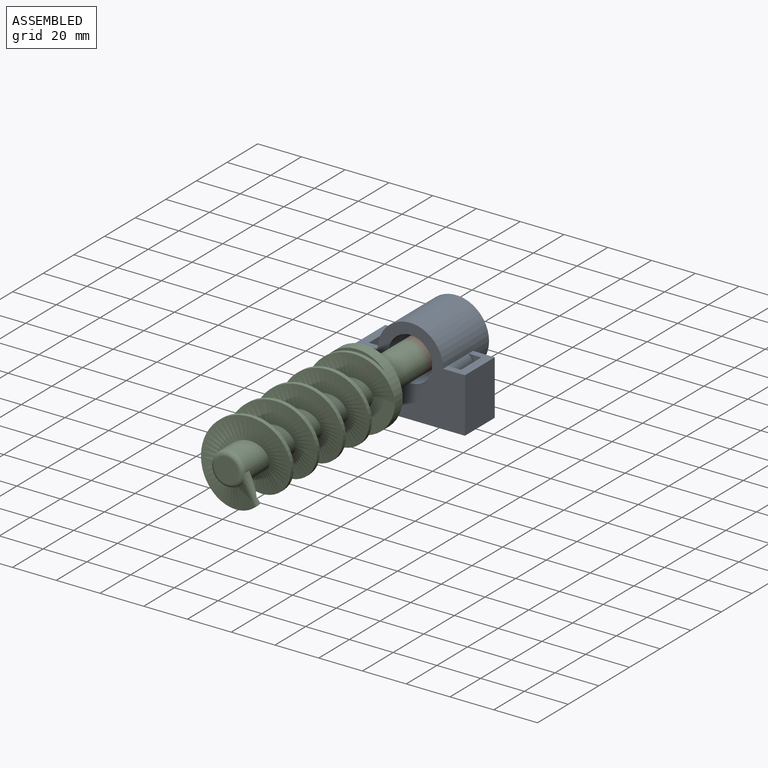
[diagram: assembled view]
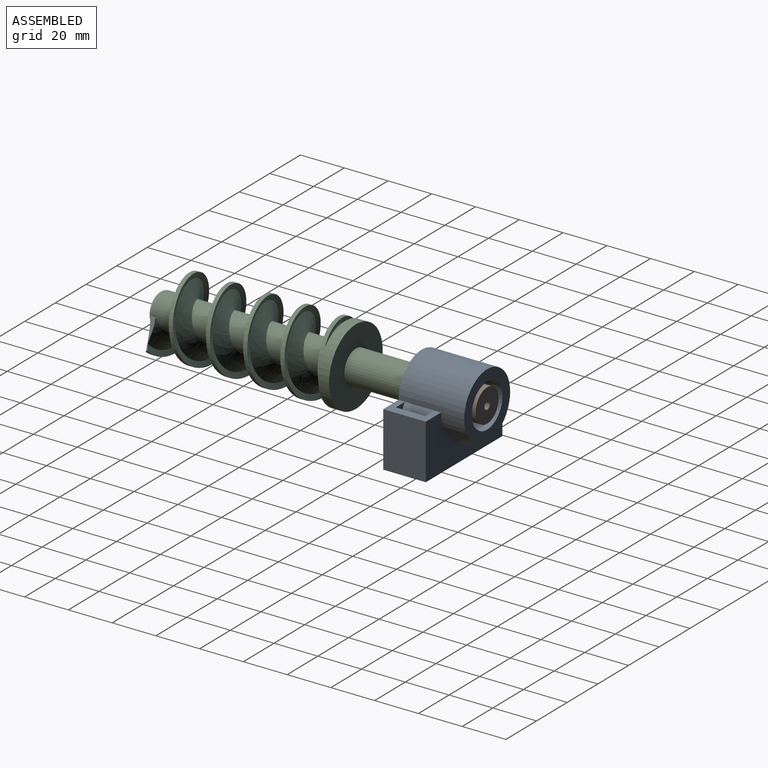
[diagram: assembled view, second angle]
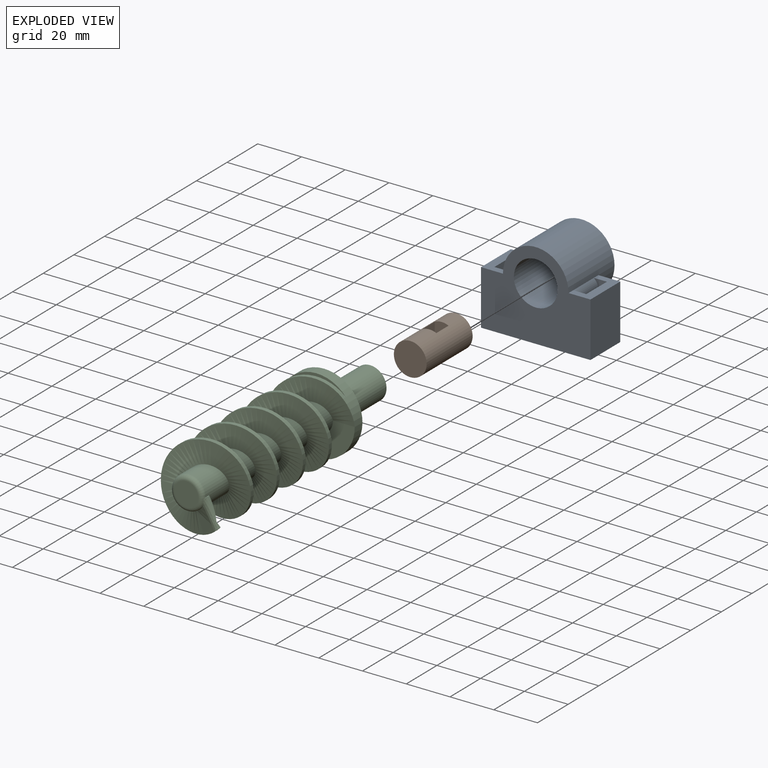
[diagram: exploded view]
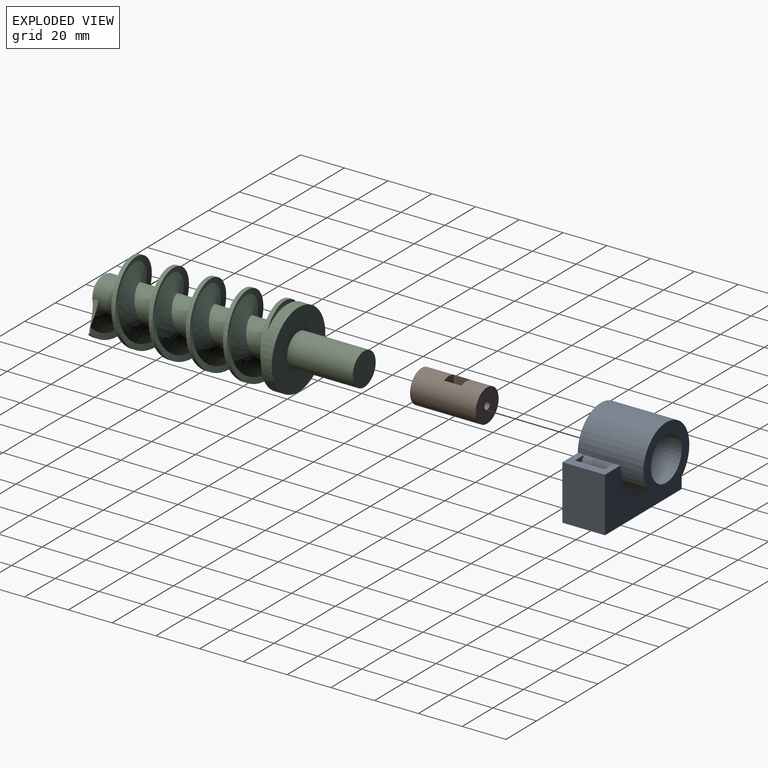
[diagram: exploded view, second angle]
ASSEMBLY  parts=3 mates=2
PART A: 20 faces, bbox 50x40x30 mm
  f0: plane 19.45x10mm, normal (0,1,0), area 113.8mm2, adj f2,f4,f7,f8,f10,f12,f13
  f1: plane 50x19.45mm, normal (0,-1,0), area 865.1mm2, adj f4,f6,f7,f8,f10,f11,f12,f13
  f2: cylinder r=15mm len=30mm, axis (0,0,-1), area 1910.7mm2, adj f0,f3,f4,f5,f7,f18,f19
  f3: plane 30x30mm, normal (0,0,1), area 392.7mm2, adj f2,f9
  f4: plane 50x40mm, normal (0,0,-1), area 1289.3mm2, adj f0,f1,f2,f5,f6,f8,f9
  f5: plane 19.45x10mm, normal (0,1,0), area 113.8mm2, adj f2,f4,f6,f7,f14,f15,f16
  f6: plane 25x19.45mm, normal (1,0,0), area 486.4mm2, adj f1,f4,f5,f7
  f7: plane 50x25mm, normal (0,0,1), area 896.6mm2, adj f0,f1,f2,f5,f6,f8
  f8: plane 25x19.45mm, normal (-1,0,0), area 486.4mm2, adj f0,f1,f4,f7
  f9: cylinder r=10mm len=30mm, axis (0,0,1), area 1885mm2, adj f3,f4
  f10: plane 25x6mm, normal (0,0,-1), area 102.4mm2, adj f0,f1,f11,f13,f18
  f11: plane 21x13.45mm, normal (-1,0,0), area 282.5mm2, adj f1,f10,f12,f18
  f12: plane 25x6mm, normal (0,0,1), area 102.4mm2, adj f0,f1,f11,f13,f18
  f13: plane 25x13.45mm, normal (1,0,0), area 336.4mm2, adj f0,f1,f10,f12
  f14: plane 25x6mm, normal (0,0,-1), area 102.4mm2, adj f1,f5,f15,f17,f19
  f15: plane 25x13.45mm, normal (-1,0,0), area 336.4mm2, adj f1,f5,f14,f16
  f16: plane 25x6mm, normal (0,0,1), area 102.4mm2, adj f1,f5,f15,f17,f19
  f17: plane 21x13.45mm, normal (1,0,0), area 282.5mm2, adj f1,f14,f16,f19
  f18: cylinder r=5mm len=13.45mm, axis (0,0,-1), area 62.4mm2, adj f2,f10,f11,f12
  f19: cylinder r=5mm len=13.45mm, axis (0,0,-1), area 62.4mm2, adj f2,f14,f16,f17
PART B: 10 faces, bbox 15x30x15 mm
  f0: plane 15x15mm, normal (0,-1,0), area 176.7mm2, adj f9
  f1: plane 3.5x3.5mm, normal (0,1,0), area 9.6mm2, adj f2
  f2: cylinder r=1.75mm len=7.5mm, axis (0,1,0), area 82.5mm2, adj f1,f5
  f3: cylinder r=1.75mm len=9.5mm, axis (0,1,0), area 104.4mm2, adj f4,f7
  f4: plane 15x15mm, normal (0,1,0), area 167.1mm2, adj f3,f9
  f5: plane 15x6.3mm, normal (0,1,0), area 82mm2, adj f2,f6,f8,f9
  f6: plane 13.61x8mm, normal (1,0,0), area 108.9mm2, adj f5,f7,f9
  f7: plane 15x6.3mm, normal (0,-1,0), area 82mm2, adj f3,f6,f8,f9
  f8: plane 13.61x8mm, normal (-1,0,0), area 108.9mm2, adj f5,f7,f9
  f9: cylinder r=7.5mm len=30mm, axis (0,-1,0), area 1309.7mm2, adj f0,f4,f5,f6,f7,f8
PART C: 19 faces, bbox 35.2x120.4x37 mm
  f0: cylinder r=7.5mm len=30mm, axis (0,-1,0), area 1413.7mm2, adj f8,f18
  f1: cylinder r=17.5mm len=35mm, axis (0,1,0), area 716.3mm2, adj f2,f7,f8,f12,f14
  f2: cylinder r=17.5mm len=35mm, axis (0,1,0), area 206.2mm2, adj f1,f3,f12,f14
  f3: cylinder r=17.5mm len=35mm, axis (0,1,0), area 206.2mm2, adj f2,f4,f12,f14
  f4: cylinder r=17.5mm len=35mm, axis (0,1,0), area 206.3mm2, adj f3,f5,f12,f14
  f5: cylinder r=17.5mm len=35mm, axis (0,1,0), area 206.3mm2, adj f4,f6,f12,f14
  f6: cylinder r=17.5mm len=1.88mm, axis (0,1,0), area 2.2mm2, adj f5,f12,f17
  f7: plane 35.12x35.12mm, normal (0,-1,0), area 685.6mm2, adj f1,f9,f12,f13,f14
  f8: plane 35x35mm, normal (0,1,0), area 785.4mm2, adj f0,f1
  f9: cylinder r=7.5mm len=83mm, axis (0,1,0), area 2991.3mm2, adj f7,f11,f13,f14,f16
  f10: plane 11x11mm, normal (0,-1,0), area 95mm2, adj f16
  f11: plane 3.15x0.74mm, normal (0,0,-1), area 0.7mm2, adj f9,f13,f15,f16,f17
  f12: bspline ~83.96x36.8mm, area 1282mm2, adj f1,f2,f3,f4,f5,f6,f7,f13
  f13: bspline ~87.78x31.54mm, area 2778.3mm2, adj f7,f9,f11,f12,f15,f17
  f14: bspline ~85x36.8mm, area 3934.1mm2, adj f1,f2,f3,f4,f5,f7,f9,f16
  f15: plane 5.48x2.45mm, normal (-0.91,0,-0.41), area 4.2mm2, adj f11,f13,f17
  f16: torus R=5.5mm, axis (0,-1,0), area 129.3mm2, adj f9,f10,f11,f14,f17
  f17: bspline ~16.29x8.81mm, area 40.9mm2, adj f6,f11,f12,f13,f14,f15,f16
  f18: plane 15x15mm, normal (0,1,0), area 176.7mm2, adj f0
PLACE A rot(axis=(0,0.71,0.71),180deg) t=(-30.05,8.35,55.36)mm
PLACE B rot(axis=(0,1,0),180deg) t=(-30.05,-21.65,55.36)mm
PLACE C rot(axis=(0,1,0),180deg) t=(-30.05,-21.65,55.36)mm
MATE fastened B.f9 <-> C.f0  axis (0,-1,0) through (-30.05,8.35,55.36)mm
MATE slider A.f9 <-> C.f0  axis (0,1,0) through (-30.05,8.35,55.36)mm
